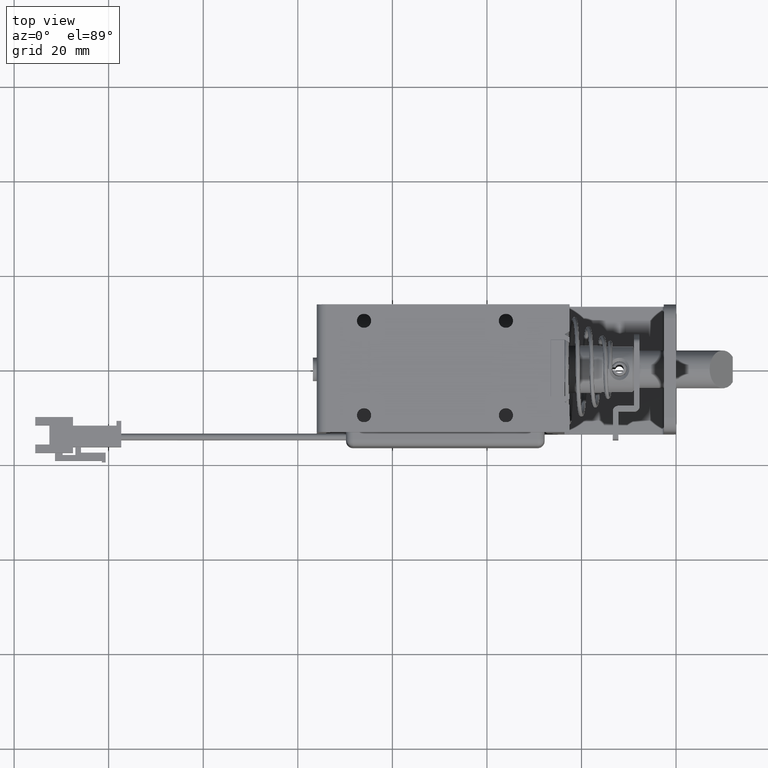
[diagram: clean part render]
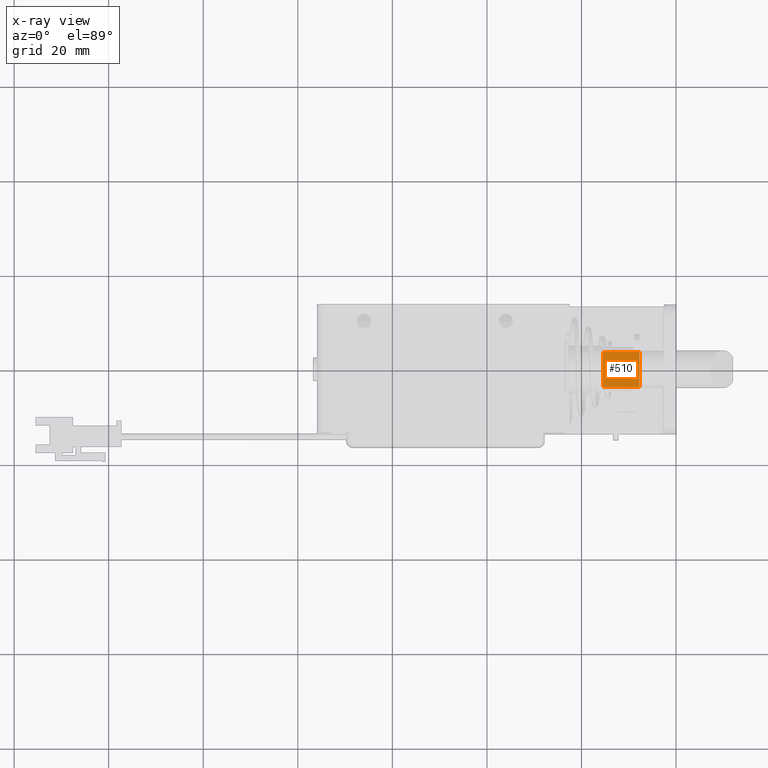
[diagram: x-ray — body ghosted, one internal face saturated and labeled with its STEP entity id]
A machine part, top view, then the same camera in x-ray: the body is ghosted and one INTERNAL B-rep face — a face not visible from any outside direction — is saturated and labeled: STEP entity #510.
In plain terms, the highlighted planar face has unit normal (0, 0, -1).
Its self-contained STEP definition (entity closure, byte-faithful):
#510=ADVANCED_FACE('',(#4157,#4158),#4156,.T.);
#4156=PLANE('',#6474);
#4157=FACE_OUTER_BOUND('',#6475,.T.);
#4158=FACE_BOUND('',#6476,.T.);
#6471=CARTESIAN_POINT('',(5.07999999999E+00,-4.44971909226E+00,-1.50000000000E+00));
#6472=DIRECTION('',(0.00000000000E+00,0.00000000000E+00,-1.00000000000E+00));
#6473=DIRECTION('',(-1.00000000000E+00,0.00000000000E+00,0.00000000000E+00));
#6474=AXIS2_PLACEMENT_3D('',#6471,#6472,#6473);
#6475=EDGE_LOOP('',(#9594,#9595,#9596,#9597));
#6476=EDGE_LOOP('',(#9598,#9599));
#9594=ORIENTED_EDGE('',*,*,#10673,.T.);
#9595=ORIENTED_EDGE('',*,*,#10674,.T.);
#9596=ORIENTED_EDGE('',*,*,#10675,.T.);
#9597=ORIENTED_EDGE('',*,*,#10672,.T.);
#9598=ORIENTED_EDGE('',*,*,#10667,.F.);
#9599=ORIENTED_EDGE('',*,*,#10669,.F.);
#10667=EDGE_CURVE('',#16826,#16940,#16967,.T.);
#10669=EDGE_CURVE('',#16940,#16826,#16979,.T.);
#10672=EDGE_CURVE('',#16985,#16993,#17000,.T.);
#10673=EDGE_CURVE('',#16993,#17006,#17007,.T.);
#10674=EDGE_CURVE('',#17006,#17013,#17014,.T.);
#10675=EDGE_CURVE('',#17013,#16985,#17020,.T.);
#16826=VERTEX_POINT('',#21097);
#16940=VERTEX_POINT('',#21168);
#16967=CIRCLE('',#21187,1.50000000000E+00);
#16979=CIRCLE('',#21195,1.50000000000E+00);
#16985=VERTEX_POINT('',#21196);
#16993=VERTEX_POINT('',#21202);
#17000=LINE('',#21207,#21208);
#17006=VERTEX_POINT('',#21210);
#17007=LINE('',#21211,#21212);
#17013=VERTEX_POINT('',#21214);
#17014=LINE('',#21215,#21216);
#17020=LINE('',#21218,#21219);
#21097=CARTESIAN_POINT('',(-1.46969384567E+00,3.00000000000E-01,-1.49999999999E+00));
#21168=CARTESIAN_POINT('',(-1.46969384567E+00,-3.00000000000E-01,-1.49999999999E+00));
#21184=CARTESIAN_POINT('',(0.00000000000E+00,0.00000000000E+00,-1.49999999999E+00));
#21185=DIRECTION('',(0.00000000000E+00,0.00000000000E+00,-1.00000000000E+00));
#21186=DIRECTION('',(-9.79795897113E-01,2.00000000000E-01,0.00000000000E+00));
#21187=AXIS2_PLACEMENT_3D('',#21184,#21185,#21186);
#21192=CARTESIAN_POINT('',(0.00000000000E+00,0.00000000000E+00,-1.49999999999E+00));
#21193=DIRECTION('',(0.00000000000E+00,0.00000000000E+00,-1.00000000000E+00));
#21194=DIRECTION('',(1.00000000000E+00,-0.00000000000E+00,-0.00000000000E+00));
#21195=AXIS2_PLACEMENT_3D('',#21192,#21193,#21194);
#21196=CARTESIAN_POINT('',(4.29999999999E+00,3.70809924355E+00,-1.50000000000E+00));
#21202=CARTESIAN_POINT('',(4.29999999999E+00,-3.70809924355E+00,-1.50000000000E+00));
#21207=CARTESIAN_POINT('',(4.29999999999E+00,3.70809924355E+00,-1.50000000000E+00));
#21208=VECTOR('',#21209,7.41619848710E+00);
#21209=DIRECTION('',(0.00000000000E+00,-1.00000000000E+00,0.00000000000E+00));
#21210=CARTESIAN_POINT('',(-3.50000000002E+00,-3.70809924355E+00,-1.50000000000E+00));
#21211=CARTESIAN_POINT('',(4.29999999999E+00,-3.70809924355E+00,-1.50000000000E+00));
#21212=VECTOR('',#21213,7.80000000001E+00);
#21213=DIRECTION('',(-1.00000000000E+00,0.00000000000E+00,0.00000000000E+00));
#21214=CARTESIAN_POINT('',(-3.50000000002E+00,3.70809924355E+00,-1.50000000000E+00));
#21215=CARTESIAN_POINT('',(-3.50000000002E+00,-3.70809924355E+00,-1.50000000000E+00));
#21216=VECTOR('',#21217,7.41619848710E+00);
#21217=DIRECTION('',(0.00000000000E+00,1.00000000000E+00,0.00000000000E+00));
#21218=CARTESIAN_POINT('',(-3.50000000002E+00,3.70809924355E+00,-1.50000000000E+00));
#21219=VECTOR('',#21220,7.80000000001E+00);
#21220=DIRECTION('',(1.00000000000E+00,0.00000000000E+00,0.00000000000E+00));